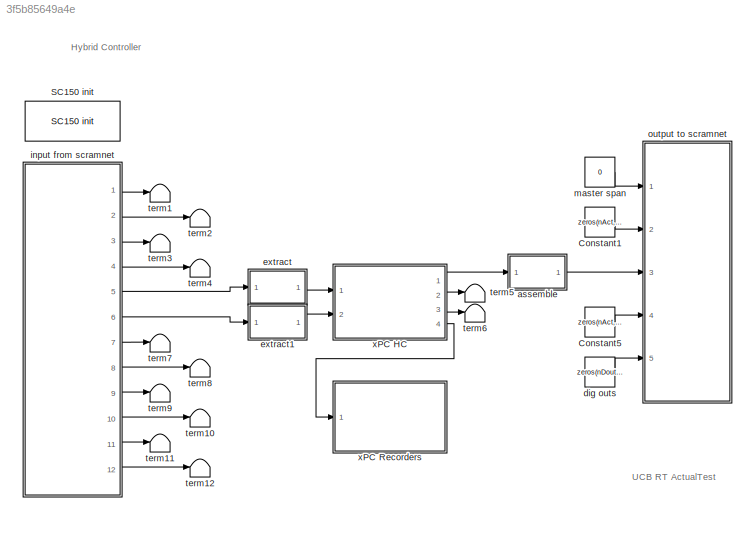
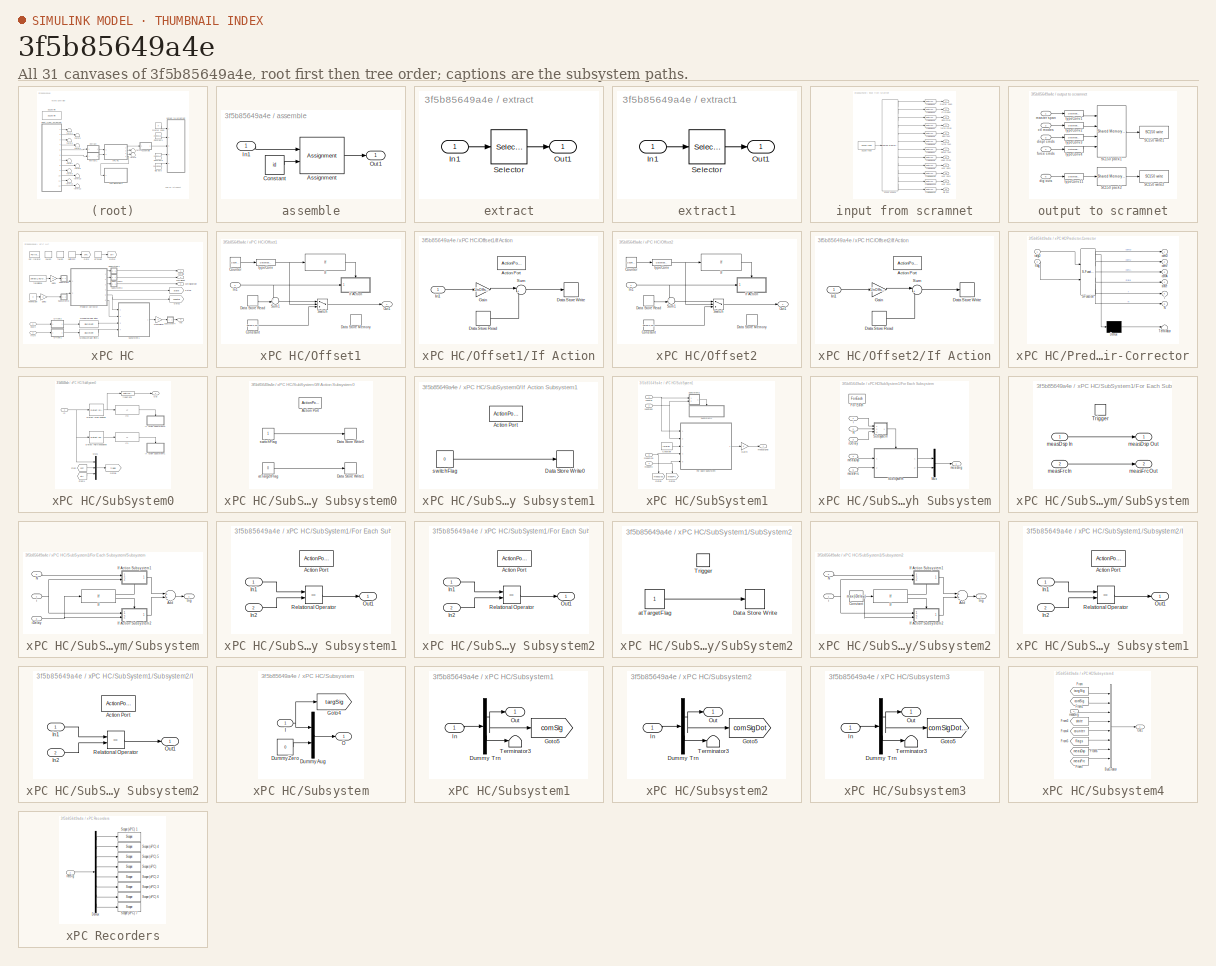
[diagram: thumbnail index - all 31 canvases of the model, root first then tree order]
MODEL slx_3f5b85649a4e
KIND model
CONFIG PreLoadFcn = initializeSimulation\ninitializeSCRAMNet
BLOCK [Constant] Constant1
  Value = zeros(nAct,1)
BLOCK [Constant] Constant5
  Value = zeros(nAct,1)
BLOCK [Reference] SC150 init  REF=xpcsystranlib/Shared
Memory/SC150 init 
  Ports = []
  SourceBlock = xpcsystranlib/Shared\nMemory/SC150 init
  SourceType = SC150 Init
  node = node
  pci = -1
BLOCK [SubSystem] assemble
  Ports = [1, 1]
  RequestExecContextInheritance = off
BLOCK [Assignment] assemble/Assignment
  IndexOptions = Index vector (port)
  OutputInitialize = Specify size for each dimension in table
  OutputSizes = size
  Ports = [2, 1]
BLOCK [Constant] assemble/Constant
  Value = id
BLOCK [Inport] assemble/In1
  IconDisplay = Port number
BLOCK [Outport] assemble/Out1
  IconDisplay = Port number
BLOCK [Constant] dig outs
  OutDataTypeStr = uint32
  Value = zeros(nDout, 1)
BLOCK [SubSystem] extract
  Ports = [1, 1]
  RequestExecContextInheritance = off
BLOCK [Inport] extract/In1
  IconDisplay = Port number
BLOCK [Outport] extract/Out1
  IconDisplay = Port number
BLOCK [Selector] extract/Selector
  Indices = id
  InputPortWidth = size
  Ports = [1, 1]
BLOCK [SubSystem] extract1
  Ports = [1, 1]
  RequestExecContextInheritance = off
BLOCK [Inport] extract1/In1
  IconDisplay = Port number
BLOCK [Outport] extract1/Out1
  IconDisplay = Port number
BLOCK [Selector] extract1/Selector
  Indices = id
  InputPortWidth = size
  Ports = [1, 1]
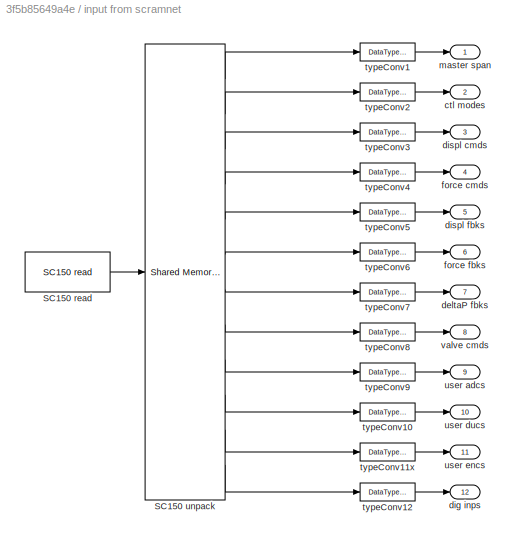
BLOCK [SubSystem] input from scramnet
  Ports = [0, 12]
  RequestExecContextInheritance = off
BLOCK [Reference] input from scramnet/SC150 read  REF=xpcsystranlib/Shared
Memory/SC150 read 
  Ports = [0, 1]
  SourceBlock = xpcsystranlib/Shared\nMemory/SC150 read
  SourceType = SC150 Read
  errorport = off
  partition = node.Partitions(12:23)
  pci = -1
  ts = samplePeriod
BLOCK [Reference] input from scramnet/SC150 unpack  REF=slrtlib/Shared
Memory/Shared Memory Unpack 
  Ports = [1, 12]
  SourceBlock = slrtlib/Shared\nMemory/Shared Memory Unpack
  SourceType = Shared Memory Partition Unpacking
  partition = node.Partitions(12:23)
BLOCK [Outport] input from scramnet/ctl modes
  IconDisplay = Port number
  Port = 2
BLOCK [Outport] input from scramnet/deltaP fbks
  IconDisplay = Port number
  Port = 7
BLOCK [Outport] input from scramnet/dig inps
  IconDisplay = Port number
  Port = 12
BLOCK [Outport] input from scramnet/displ cmds
  IconDisplay = Port number
  Port = 3
BLOCK [Outport] input from scramnet/displ fbks
  IconDisplay = Port number
  Port = 5
BLOCK [Outport] input from scramnet/force cmds
  IconDisplay = Port number
  Port = 4
BLOCK [Outport] input from scramnet/force fbks
  IconDisplay = Port number
  Port = 6
BLOCK [Outport] input from scramnet/master span
  IconDisplay = Port number
BLOCK [DataTypeConversion] input from scramnet/typeConv1
  OutDataTypeStr = double
BLOCK [DataTypeConversion] input from scramnet/typeConv10
  OutDataTypeStr = double
BLOCK [DataTypeConversion] input from scramnet/typeConv11x
  OutDataTypeStr = double
BLOCK [DataTypeConversion] input from scramnet/typeConv12
  OutDataTypeStr = uint32
BLOCK [DataTypeConversion] input from scramnet/typeConv2
  OutDataTypeStr = uint32
BLOCK [DataTypeConversion] input from scramnet/typeConv3
  OutDataTypeStr = double
BLOCK [DataTypeConversion] input from scramnet/typeConv4
  OutDataTypeStr = double
BLOCK [DataTypeConversion] input from scramnet/typeConv5
  OutDataTypeStr = double
BLOCK [DataTypeConversion] input from scramnet/typeConv6
  OutDataTypeStr = double
BLOCK [DataTypeConversion] input from scramnet/typeConv7
  OutDataTypeStr = double
BLOCK [DataTypeConversion] input from scramnet/typeConv8
  OutDataTypeStr = double
BLOCK [DataTypeConversion] input from scramnet/typeConv9
  OutDataTypeStr = double
BLOCK [Outport] input from scramnet/user adcs
  IconDisplay = Port number
  Port = 9
BLOCK [Outport] input from scramnet/user ducs
  IconDisplay = Port number
  Port = 10
BLOCK [Outport] input from scramnet/user encs
  IconDisplay = Port number
  Port = 11
BLOCK [Outport] input from scramnet/valve cmds
  IconDisplay = Port number
  Port = 8
BLOCK [Constant] master span
  Value = 0
BLOCK [SubSystem] output to scramnet
  Ports = [5]
  RequestExecContextInheritance = off
BLOCK [Reference] output to scramnet/SC150 pack1  REF=slrtlib/Shared
Memory/Shared Memory Pack 
  Ports = [4, 1]
  SourceBlock = slrtlib/Shared\nMemory/Shared Memory Pack
  SourceType = Shared-memory Pack
  partition = node.Partitions(1:4)
BLOCK [Reference] output to scramnet/SC150 pack2  REF=slrtlib/Shared
Memory/Shared Memory Pack 
  Ports = [1, 1]
  SourceBlock = slrtlib/Shared\nMemory/Shared Memory Pack
  SourceType = Shared-memory Pack
  partition = node.Partitions(11)
BLOCK [Reference] output to scramnet/SC150 write1  REF=xpcsystranlib/Shared
Memory/SC150 write 
  Ports = [1]
  SourceBlock = xpcsystranlib/Shared\nMemory/SC150 write
  SourceType = SC150 Write
  errorport = off
  partition = node.Partitions(1:4)
  pci = -1
  ts = samplePeriod
BLOCK [Reference] output to scramnet/SC150 write2  REF=xpcsystranlib/Shared
Memory/SC150 write 
  Ports = [1]
  SourceBlock = xpcsystranlib/Shared\nMemory/SC150 write
  SourceType = SC150 Write
  errorport = off
  partition = node.Partitions(11)
  pci = -1
  ts = samplePeriod
BLOCK [Inport] output to scramnet/ctl modes
  IconDisplay = Port number
  Port = 2
BLOCK [Inport] output to scramnet/dig outs
  IconDisplay = Port number
  Port = 5
BLOCK [Inport] output to scramnet/displ cmds
  IconDisplay = Port number
  Port = 3
BLOCK [Inport] output to scramnet/force cmds
  IconDisplay = Port number
  Port = 4
BLOCK [Inport] output to scramnet/master span
  IconDisplay = Port number
BLOCK [DataTypeConversion] output to scramnet/typeConv1
  OutDataTypeStr = single
BLOCK [DataTypeConversion] output to scramnet/typeConv11
  OutDataTypeStr = uint32
BLOCK [DataTypeConversion] output to scramnet/typeConv2
  OutDataTypeStr = uint32
BLOCK [DataTypeConversion] output to scramnet/typeConv3
  OutDataTypeStr = single
BLOCK [DataTypeConversion] output to scramnet/typeConv4
  OutDataTypeStr = single
BLOCK [Terminator] term1
BLOCK [Terminator] term10
BLOCK [Terminator] term11
BLOCK [Terminator] term12
BLOCK [Terminator] term2
BLOCK [Terminator] term3
BLOCK [Terminator] term4
BLOCK [Terminator] term5
BLOCK [Terminator] term6
BLOCK [Terminator] term7
BLOCK [Terminator] term8
BLOCK [Terminator] term9
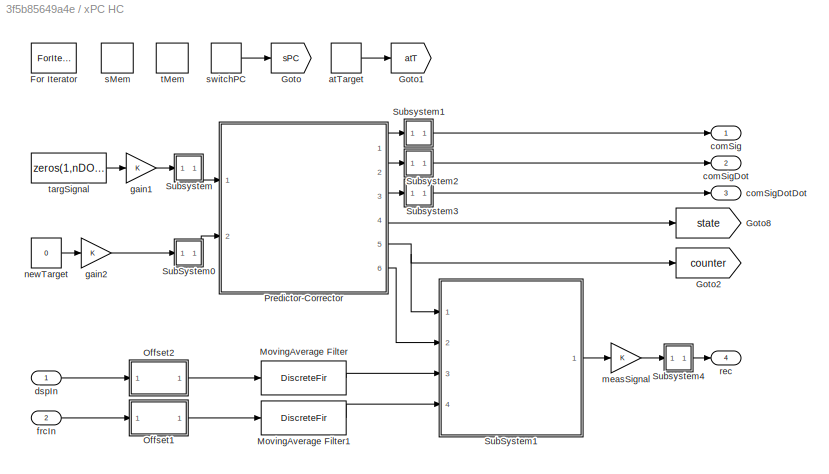
BLOCK [SubSystem] xPC HC
  Ports = [2, 4]
  RequestExecContextInheritance = off
BLOCK [ForIterator] xPC HC/For Iterator
  IterationLimit = upFact
  Ports = []
  ShowIterationPort = off
BLOCK [Goto] xPC HC/Goto
  GotoTag = sPC
  TagVisibility = global
BLOCK [Goto] xPC HC/Goto1
  GotoTag = atT
  TagVisibility = global
BLOCK [Goto] xPC HC/Goto2
  GotoTag = counter
  TagVisibility = global
BLOCK [Goto] xPC HC/Goto8
  GotoTag = state
  TagVisibility = global
BLOCK [DiscreteFir] xPC HC/MovingAverage Filter
  Coefficients = 1/numSample*ones(1,numSample)
  Ports = [1, 1]
BLOCK [DiscreteFir] xPC HC/MovingAverage Filter1
  Coefficients = 1/numSample*ones(1,numSample)
  Ports = [1, 1]
BLOCK [SubSystem] xPC HC/Offset1
  Ports = [1, 1]
  RequestExecContextInheritance = off
BLOCK [Constant] xPC HC/Offset1/Constant
  Value = zeros(1,nS)
BLOCK [Reference] xPC HC/Offset1/Counter  REF=simulink/Sources/Counter
Free-Running
  NumBits = 32
  Ports = [0, 1]
  SourceBlock = simulink/Sources/Counter\nFree-Running
  SourceType = Counter Free-Running
  tsamp = -1
BLOCK [DataStoreMemory] xPC HC/Offset1/Data Store Memory
  DataStoreName = x0
  InitialValue = zeros(1,nS)
  OutDataTypeStr = double
  SignalType = real
BLOCK [DataStoreRead] xPC HC/Offset1/Data Store Read
  DataStoreName = x0
  Ports = [0, 1]
BLOCK [If] xPC HC/Offset1/If
  IfExpression = u1 < nOffset
  Ports = [1, 1]
  ShowElse = off
BLOCK [SubSystem] xPC HC/Offset1/If Action
  Ports = [1, 0, 0, 0, 0, 0, 0, 1]
  RequestExecContextInheritance = off
  TreatAsAtomicUnit = on
BLOCK [ActionPort] xPC HC/Offset1/If Action/Action Port
  ActionType = then
  PropagateVarSize = During execution
BLOCK [DataStoreRead] xPC HC/Offset1/If Action/Data Store Read
  DataStoreName = x0
  Ports = [0, 1]
BLOCK [DataStoreWrite] xPC HC/Offset1/If Action/Data Store Write
  DataStoreName = x0
  Ports = [1]
BLOCK [Gain] xPC HC/Offset1/If Action/Gain
  Gain = 1/nOffset
BLOCK [Inport] xPC HC/Offset1/If Action/In1
  IconDisplay = Port number
BLOCK [Sum] xPC HC/Offset1/If Action/Sum
  IconShape = round
  Inputs = |++
  Ports = [2, 1]
BLOCK [Inport] xPC HC/Offset1/In1
  IconDisplay = Port number
BLOCK [Outport] xPC HC/Offset1/Out1
  IconDisplay = Port number
BLOCK [Sum] xPC HC/Offset1/Sum1
  IconShape = round
  Inputs = +-|
  Ports = [2, 1]
BLOCK [Switch] xPC HC/Offset1/Switch
  Threshold = nOffset
BLOCK [DataTypeConversion] xPC HC/Offset1/typeConv
  OutDataTypeStr = double
  RndMeth = Round
BLOCK [SubSystem] xPC HC/Offset2
  Ports = [1, 1]
  RequestExecContextInheritance = off
BLOCK [Constant] xPC HC/Offset2/Constant
  Value = zeros(1,nS)
BLOCK [Reference] xPC HC/Offset2/Counter  REF=simulink/Sources/Counter
Free-Running
  NumBits = 32
  Ports = [0, 1]
  SourceBlock = simulink/Sources/Counter\nFree-Running
  SourceType = Counter Free-Running
  tsamp = -1
BLOCK [DataStoreMemory] xPC HC/Offset2/Data Store Memory
  DataStoreName = x0
  InitialValue = zeros(1,nS)
  OutDataTypeStr = double
  SignalType = real
BLOCK [DataStoreRead] xPC HC/Offset2/Data Store Read
  DataStoreName = x0
  Ports = [0, 1]
BLOCK [If] xPC HC/Offset2/If
  IfExpression = u1 < nOffset
  Ports = [1, 1]
  ShowElse = off
BLOCK [SubSystem] xPC HC/Offset2/If Action
  Ports = [1, 0, 0, 0, 0, 0, 0, 1]
  RequestExecContextInheritance = off
  TreatAsAtomicUnit = on
BLOCK [ActionPort] xPC HC/Offset2/If Action/Action Port
  ActionType = then
  PropagateVarSize = During execution
BLOCK [DataStoreRead] xPC HC/Offset2/If Action/Data Store Read
  DataStoreName = x0
  Ports = [0, 1]
BLOCK [DataStoreWrite] xPC HC/Offset2/If Action/Data Store Write
  DataStoreName = x0
  Ports = [1]
BLOCK [Gain] xPC HC/Offset2/If Action/Gain
  Gain = 1/nOffset
BLOCK [Inport] xPC HC/Offset2/If Action/In1
  IconDisplay = Port number
BLOCK [Sum] xPC HC/Offset2/If Action/Sum
  IconShape = round
  Inputs = |++
  Ports = [2, 1]
BLOCK [Inport] xPC HC/Offset2/In1
  IconDisplay = Port number
BLOCK [Outport] xPC HC/Offset2/Out1
  IconDisplay = Port number
BLOCK [Sum] xPC HC/Offset2/Sum1
  IconShape = round
  Inputs = +-|
  Ports = [2, 1]
BLOCK [Switch] xPC HC/Offset2/Switch
  Threshold = nOffset
BLOCK [DataTypeConversion] xPC HC/Offset2/typeConv
  OutDataTypeStr = double
  RndMeth = Round
BLOCK [SubSystem] xPC HC/Predictor-Corrector
  ErrorFcn = Stateflow.Translate.translate
  PermitHierarchicalResolution = ExplicitOnly
  Ports = [2, 6]
  RequestExecContextInheritance = off
  SFBlockType = Chart
  TreatAsAtomicUnit = on
BLOCK [Demux] xPC HC/Predictor-Corrector/ Demux 
  Outputs = 1
  Ports = [1, 1]
BLOCK [S-Function] xPC HC/Predictor-Corrector/ SFunction 
  EnableBusSupport = on
  FunctionName = sf_sfun
  Parameters = dofID,dtCon,dtInt,dtSim,nDOF,vDOF,vDOFmax
  PortCounts = [2 7]
  Ports = [2, 7]
  Tag = Stateflow S-Function HybridControllerD2D2_Vconst 2
BLOCK [Terminator] xPC HC/Predictor-Corrector/ Terminator 
BLOCK [Outport] xPC HC/Predictor-Corrector/N
  IconDisplay = Port number
  Port = 6
BLOCK [Outport] xPC HC/Predictor-Corrector/comA
  IconDisplay = Port number
  Port = 3
BLOCK [Outport] xPC HC/Predictor-Corrector/comD
  IconDisplay = Port number
BLOCK [Outport] xPC HC/Predictor-Corrector/comV
  IconDisplay = Port number
  Port = 2
BLOCK [Inport] xPC HC/Predictor-Corrector/flag
  IconDisplay = Port number
  Port = 2
BLOCK [Outport] xPC HC/Predictor-Corrector/i
  IconDisplay = Port number
  Port = 5
BLOCK [Outport] xPC HC/Predictor-Corrector/state
  IconDisplay = Port number
  Port = 4
BLOCK [Inport] xPC HC/Predictor-Corrector/targD
  IconDisplay = Port number
BLOCK [SubSystem] xPC HC/SubSystem0
  Ports = [1, 1]
  RequestExecContextInheritance = off
BLOCK [Reference] xPC HC/SubSystem0/Detect Fall Nonpositive  REF=simulink/Logic and Bit
Operations/Detect Fall
Nonpositive
  InputProcessing = Elements as channels (sample based)
  OutDataTypeStr = uint8
  Ports = [1, 1]
  SourceBlock = simulink/Logic and Bit\nOperations/Detect Fall\nNonpositive
  SourceType = Detect Fall Nonpositive
  vinit = 0
BLOCK [Reference] xPC HC/SubSystem0/Detect Rise Positive  REF=simulink/Logic and Bit
Operations/Detect Rise
Positive
  InputProcessing = Elements as channels (sample based)
  OutDataTypeStr = uint8
  Ports = [1, 1]
  SourceBlock = simulink/Logic and Bit\nOperations/Detect Rise\nPositive
  SourceType = Detect Rise Positive
  vinit = 0
BLOCK [From] xPC HC/SubSystem0/From
  GotoTag = sPC
  IconDisplay = Signal name
  TagVisibility = global
BLOCK [From] xPC HC/SubSystem0/From1
  GotoTag = atT
  IconDisplay = Signal name
  TagVisibility = global
BLOCK [Goto] xPC HC/SubSystem0/Goto8
  GotoTag = flags
  TagVisibility = global
BLOCK [SubSystem] xPC HC/SubSystem0/If Action Subsystem0
  Ports = [0, 0, 0, 0, 0, 0, 0, 1]
  RequestExecContextInheritance = off
  TreatAsAtomicUnit = on
BLOCK [ActionPort] xPC HC/SubSystem0/If Action Subsystem0/Action Port
  ActionType = then
  PropagateVarSize = During execution
BLOCK [DataStoreWrite] xPC HC/SubSystem0/If Action Subsystem0/Data Store Write0
  DataStoreName = sFlag
  Ports = [1]
BLOCK [DataStoreWrite] xPC HC/SubSystem0/If Action Subsystem0/Data Store Write1
  DataStoreName = tFlag
  Ports = [1]
BLOCK [Constant] xPC HC/SubSystem0/If Action Subsystem0/atTargetFlag
  OutDataTypeStr = int32
  SampleTime = -1
  Value = 0
BLOCK [Constant] xPC HC/SubSystem0/If Action Subsystem0/switchFlag
  OutDataTypeStr = int32
  SampleTime = -1
BLOCK [SubSystem] xPC HC/SubSystem0/If Action Subsystem1
  Ports = [0, 0, 0, 0, 0, 0, 0, 1]
  RequestExecContextInheritance = off
  TreatAsAtomicUnit = on
BLOCK [ActionPort] xPC HC/SubSystem0/If Action Subsystem1/Action Port
  ActionType = then
  PropagateVarSize = During execution
BLOCK [DataStoreWrite] xPC HC/SubSystem0/If Action Subsystem1/Data Store Write0
  DataStoreName = sFlag
  Ports = [1]
BLOCK [Constant] xPC HC/SubSystem0/If Action Subsystem1/switchFlag
  OutDataTypeStr = int32
  SampleTime = -1
  Value = 0
BLOCK [If] xPC HC/SubSystem0/If0
  IfExpression = u1 == 1
  Ports = [1, 1]
  ShowElse = off
BLOCK [If] xPC HC/SubSystem0/If1
  IfExpression = u1 == 1
  Ports = [1, 1]
  ShowElse = off
BLOCK [Inport] xPC HC/SubSystem0/In
  IconDisplay = Port number
BLOCK [Mux] xPC HC/SubSystem0/Mux1
  DisplayOption = bar
  Inputs = 3
  Ports = [3, 1]
BLOCK [Outport] xPC HC/SubSystem0/Out
  IconDisplay = Port number
BLOCK [DataTypeConversion] xPC HC/SubSystem0/typeConv
  OutDataTypeStr = int32
BLOCK [SubSystem] xPC HC/SubSystem1
  Ports = [4, 1]
  RequestExecContextInheritance = off
BLOCK [Constant] xPC HC/SubSystem1/Constant
  Value = iDelay
BLOCK [SubSystem] xPC HC/SubSystem1/For Each Subsystem
  Ports = [5, 1]
  RequestExecContextInheritance = off
  TreatAsAtomicUnit = on
BLOCK [ForEach] xPC HC/SubSystem1/For Each Subsystem/For Each
  DisableCoverage = on
  IndexMode = One-based
  Ports = []
BLOCK [Mux] xPC HC/SubSystem1/For Each Subsystem/Mux
  DisplayOption = bar
  Inputs = 2
  Ports = [2, 1]
BLOCK [Inport] xPC HC/SubSystem1/For Each Subsystem/N
  IconDisplay = Port number
  Partition = off
  Port = 2
BLOCK [SubSystem] xPC HC/SubSystem1/For Each Subsystem/SubSystem
  Ports = [2, 2, 0, 1]
  RequestExecContextInheritance = off
  TreatAsAtomicUnit = on
BLOCK [TriggerPort] xPC HC/SubSystem1/For Each Subsystem/SubSystem/Trigger
  Ports = []
  StatesWhenEnabling = held
BLOCK [Inport] xPC HC/SubSystem1/For Each Subsystem/SubSystem/measDsp In
  IconDisplay = Port number
BLOCK [Outport] xPC HC/SubSystem1/For Each Subsystem/SubSystem/measDsp Out
  IconDisplay = Port number
  InitialOutput = [0]
BLOCK [Inport] xPC HC/SubSystem1/For Each Subsystem/SubSystem/measFrc In
  IconDisplay = Port number
  Port = 2
BLOCK [Outport] xPC HC/SubSystem1/For Each Subsystem/SubSystem/measFrc Out
  IconDisplay = Port number
  InitialOutput = [0]
  Port = 2
BLOCK [SubSystem] xPC HC/SubSystem1/For Each Subsystem/Subsystem
  Ports = [3, 1]
  RequestExecContextInheritance = off
BLOCK [Sum] xPC HC/SubSystem1/For Each Subsystem/Subsystem/Add
  InputSameDT = off
  OutDataTypeStr = Inherit: Inherit via internal rule
  Ports = [2, 1]
  SaturateOnIntegerOverflow = off
BLOCK [If] xPC HC/SubSystem1/For Each Subsystem/Subsystem/If
  IfExpression = u1 == 0
  Ports = [1, 2]
BLOCK [SubSystem] xPC HC/SubSystem1/For Each Subsystem/Subsystem/If Action Subsystem1
  Ports = [2, 1, 0, 0, 0, 0, 0, 1]
  RequestExecContextInheritance = off
  TreatAsAtomicUnit = on
BLOCK [ActionPort] xPC HC/SubSystem1/For Each Subsystem/Subsystem/If Action Subsystem1/Action Port
  ActionType = then
BLOCK [Inport] xPC HC/SubSystem1/For Each Subsystem/Subsystem/If Action Subsystem1/In1
  IconDisplay = Port number
BLOCK [Inport] xPC HC/SubSystem1/For Each Subsystem/Subsystem/If Action Subsystem1/In2
  IconDisplay = Port number
  Port = 2
BLOCK [Outport] xPC HC/SubSystem1/For Each Subsystem/Subsystem/If Action Subsystem1/Out1
  IconDisplay = Port number
  InitialOutput = 0
BLOCK [RelationalOperator] xPC HC/SubSystem1/For Each Subsystem/Subsystem/If Action Subsystem1/Relational Operator
  InputSameDT = off
  Operator = ==
  OutDataTypeStr = boolean
  Ports = [2, 1]
BLOCK [SubSystem] xPC HC/SubSystem1/For Each Subsystem/Subsystem/If Action Subsystem2
  Ports = [2, 1, 0, 0, 0, 0, 0, 1]
  RequestExecContextInheritance = off
  TreatAsAtomicUnit = on
BLOCK [ActionPort] xPC HC/SubSystem1/For Each Subsystem/Subsystem/If Action Subsystem2/Action Port
  ActionType = else
BLOCK [Inport] xPC HC/SubSystem1/For Each Subsystem/Subsystem/If Action Subsystem2/In1
  IconDisplay = Port number
BLOCK [Inport] xPC HC/SubSystem1/For Each Subsystem/Subsystem/If Action Subsystem2/In2
  IconDisplay = Port number
  Port = 2
BLOCK [Outport] xPC HC/SubSystem1/For Each Subsystem/Subsystem/If Action Subsystem2/Out1
  IconDisplay = Port number
  InitialOutput = 0
BLOCK [RelationalOperator] xPC HC/SubSystem1/For Each Subsystem/Subsystem/If Action Subsystem2/Relational Operator
  InputSameDT = off
  Operator = ==
  OutDataTypeStr = boolean
  Ports = [2, 1]
BLOCK [Inport] xPC HC/SubSystem1/For Each Subsystem/Subsystem/N
  IconDisplay = Port number
  Port = 2
BLOCK [Inport] xPC HC/SubSystem1/For Each Subsystem/Subsystem/i
  IconDisplay = Port number
BLOCK [Inport] xPC HC/SubSystem1/For Each Subsystem/Subsystem/iDelay
  IconDisplay = Port number
  Port = 3
BLOCK [Outport] xPC HC/SubSystem1/For Each Subsystem/Subsystem/trig
  IconDisplay = Port number
BLOCK [Inport] xPC HC/SubSystem1/For Each Subsystem/i
  IconDisplay = Port number
  Partition = off
BLOCK [Inport] xPC HC/SubSystem1/For Each Subsystem/iDelay
  IconDisplay = Port number
  Partition = on
  PartitionDimension = 1
  PartitionWidth = 1
  Port = 3
BLOCK [Inport] xPC HC/SubSystem1/For Each Subsystem/measDsp
  IconDisplay = Port number
  Partition = on
  PartitionDimension = 1
  PartitionWidth = 1
  Port = 4
BLOCK [Inport] xPC HC/SubSystem1/For Each Subsystem/measFrc
  IconDisplay = Port number
  Partition = on
  PartitionDimension = 1
  PartitionWidth = 1
  Port = 5
BLOCK [Outport] xPC HC/SubSystem1/For Each Subsystem/measSig
  ConcatenationDimension = 1
  IconDisplay = Port number
BLOCK [Gain] xPC HC/SubSystem1/Gain4
BLOCK [Goto] xPC HC/SubSystem1/Goto4
  GotoTag = measFrc
  TagVisibility = global
BLOCK [Goto] xPC HC/SubSystem1/Goto5
  GotoTag = measDsp
  TagVisibility = global
BLOCK [SubSystem] xPC HC/SubSystem1/SubSystem2
  Ports = [0, 0, 0, 1]
  RequestExecContextInheritance = off
  TreatAsAtomicUnit = on
BLOCK [DataStoreWrite] xPC HC/SubSystem1/SubSystem2/Data Store Write
  DataStoreName = tFlag
  Ports = [1]
BLOCK [TriggerPort] xPC HC/SubSystem1/SubSystem2/Trigger
  Ports = []
  StatesWhenEnabling = held
BLOCK [Constant] xPC HC/SubSystem1/SubSystem2/atTargetFlag
  OutDataTypeStr = int32
  SampleTime = -1
BLOCK [SubSystem] xPC HC/SubSystem1/Subsystem2
  Ports = [2, 1]
  RequestExecContextInheritance = off
BLOCK [Sum] xPC HC/SubSystem1/Subsystem2/Add
  InputSameDT = off
  OutDataTypeStr = Inherit: Inherit via internal rule
  Ports = [2, 1]
  SaturateOnIntegerOverflow = off
BLOCK [Constant] xPC HC/SubSystem1/Subsystem2/Constant
  Value = max(iDelay)
BLOCK [If] xPC HC/SubSystem1/Subsystem2/If
  IfExpression = u1 == 0
  Ports = [1, 2]
BLOCK [SubSystem] xPC HC/SubSystem1/Subsystem2/If Action Subsystem1
  Ports = [2, 1, 0, 0, 0, 0, 0, 1]
  RequestExecContextInheritance = off
  TreatAsAtomicUnit = on
BLOCK [ActionPort] xPC HC/SubSystem1/Subsystem2/If Action Subsystem1/Action Port
  ActionType = then
BLOCK [Inport] xPC HC/SubSystem1/Subsystem2/If Action Subsystem1/In1
  IconDisplay = Port number
BLOCK [Inport] xPC HC/SubSystem1/Subsystem2/If Action Subsystem1/In2
  IconDisplay = Port number
  Port = 2
BLOCK [Outport] xPC HC/SubSystem1/Subsystem2/If Action Subsystem1/Out1
  IconDisplay = Port number
  InitialOutput = 0
BLOCK [RelationalOperator] xPC HC/SubSystem1/Subsystem2/If Action Subsystem1/Relational Operator
  InputSameDT = off
  Operator = ==
  OutDataTypeStr = boolean
  Ports = [2, 1]
BLOCK [SubSystem] xPC HC/SubSystem1/Subsystem2/If Action Subsystem2
  Ports = [2, 1, 0, 0, 0, 0, 0, 1]
  RequestExecContextInheritance = off
  TreatAsAtomicUnit = on
BLOCK [ActionPort] xPC HC/SubSystem1/Subsystem2/If Action Subsystem2/Action Port
  ActionType = else
BLOCK [Inport] xPC HC/SubSystem1/Subsystem2/If Action Subsystem2/In1
  IconDisplay = Port number
BLOCK [Inport] xPC HC/SubSystem1/Subsystem2/If Action Subsystem2/In2
  IconDisplay = Port number
  Port = 2
BLOCK [Outport] xPC HC/SubSystem1/Subsystem2/If Action Subsystem2/Out1
  IconDisplay = Port number
  InitialOutput = 0
BLOCK [RelationalOperator] xPC HC/SubSystem1/Subsystem2/If Action Subsystem2/Relational Operator
  InputSameDT = off
  Operator = ==
  OutDataTypeStr = boolean
  Ports = [2, 1]
BLOCK [Inport] xPC HC/SubSystem1/Subsystem2/N
  IconDisplay = Port number
  Port = 2
BLOCK [Inport] xPC HC/SubSystem1/Subsystem2/i
  IconDisplay = Port number
BLOCK [Outport] xPC HC/SubSystem1/Subsystem2/trig
  IconDisplay = Port number
BLOCK [Inport] xPC HC/SubSystem1/counter
  IconDisplay = Port number
BLOCK [Inport] xPC HC/SubSystem1/measDsp
  IconDisplay = Port number
  Port = 3
BLOCK [Inport] xPC HC/SubSystem1/measFrc
  IconDisplay = Port number
  Port = 4
BLOCK [Outport] xPC HC/SubSystem1/measSignal
  IconDisplay = Port number
BLOCK [Inport] xPC HC/SubSystem1/subSteps
  IconDisplay = Port number
  Port = 2
BLOCK [SubSystem] xPC HC/Subsystem
  Ports = [1, 1]
  RequestExecContextInheritance = off
BLOCK [Mux] xPC HC/Subsystem/Dummy Aug
  DisplayOption = bar
  Inputs = [nDOF 1]
  Ports = [2, 1]
BLOCK [Constant] xPC HC/Subsystem/Dummy Zero
  OutDataTypeStr = double
  SampleTime = -1
  Value = 0
BLOCK [Goto] xPC HC/Subsystem/Goto4
  GotoTag = targSig
  TagVisibility = global
BLOCK [Inport] xPC HC/Subsystem/I
  IconDisplay = Port number
  PortDimensions = nDOF
BLOCK [Outport] xPC HC/Subsystem/O
  IconDisplay = Port number
  PortDimensions = nDOF+1
BLOCK [SubSystem] xPC HC/Subsystem1
  Ports = [1, 1]
  RequestExecContextInheritance = off
BLOCK [Demux] xPC HC/Subsystem1/Dummy Trn
  DisplayOption = bar
  Outputs = [nDOF 1]
  Ports = [1, 2]
BLOCK [Goto] xPC HC/Subsystem1/Goto5
  GotoTag = comSig
  TagVisibility = global
BLOCK [Inport] xPC HC/Subsystem1/In
  IconDisplay = Port number
  PortDimensions = nDOF+1
BLOCK [Outport] xPC HC/Subsystem1/Out
  IconDisplay = Port number
  PortDimensions = nDOF
BLOCK [Terminator] xPC HC/Subsystem1/Terminator3
BLOCK [SubSystem] xPC HC/Subsystem2
  Ports = [1, 1]
  RequestExecContextInheritance = off
BLOCK [Demux] xPC HC/Subsystem2/Dummy Trn
  DisplayOption = bar
  Outputs = [nDOF 1]
  Ports = [1, 2]
BLOCK [Goto] xPC HC/Subsystem2/Goto5
  GotoTag = comSigDot
  TagVisibility = global
BLOCK [Inport] xPC HC/Subsystem2/In
  IconDisplay = Port number
  PortDimensions = nDOF+1
BLOCK [Outport] xPC HC/Subsystem2/Out
  IconDisplay = Port number
  PortDimensions = nDOF
BLOCK [Terminator] xPC HC/Subsystem2/Terminator3
BLOCK [SubSystem] xPC HC/Subsystem3
  Ports = [1, 1]
  RequestExecContextInheritance = off
BLOCK [Demux] xPC HC/Subsystem3/Dummy Trn
  DisplayOption = bar
  Outputs = [nDOF 1]
  Ports = [1, 2]
BLOCK [Goto] xPC HC/Subsystem3/Goto5
  GotoTag = comSigDotDot
  TagVisibility = global
BLOCK [Inport] xPC HC/Subsystem3/In
  IconDisplay = Port number
  PortDimensions = nDOF+1
BLOCK [Outport] xPC HC/Subsystem3/Out
  IconDisplay = Port number
  PortDimensions = nDOF
BLOCK [Terminator] xPC HC/Subsystem3/Terminator3
BLOCK [SubSystem] xPC HC/Subsystem4
  Ports = [1, 1]
  RequestExecContextInheritance = off
BLOCK [BusCreator] xPC HC/Subsystem4/BusCreator
  Inputs = 8
  Ports = [8, 1]
BLOCK [From] xPC HC/Subsystem4/From
  GotoTag = targSig
  TagVisibility = global
BLOCK [From] xPC HC/Subsystem4/From1
  GotoTag = comSig
  TagVisibility = global
BLOCK [From] xPC HC/Subsystem4/From3
  GotoTag = state
  TagVisibility = global
BLOCK [From] xPC HC/Subsystem4/From4
  GotoTag = counter
  TagVisibility = global
BLOCK [From] xPC HC/Subsystem4/From5
  GotoTag = flags
  TagVisibility = global
BLOCK [From] xPC HC/Subsystem4/From6
  GotoTag = measDsp
  TagVisibility = global
BLOCK [From] xPC HC/Subsystem4/From7
  GotoTag = measFrc
  TagVisibility = global
BLOCK [Outport] xPC HC/Subsystem4/Out1
  IconDisplay = Port number
BLOCK [Inport] xPC HC/Subsystem4/measSig
  IconDisplay = Port number
BLOCK [DataStoreRead] xPC HC/atTarget
  DataStoreName = tFlag
  Ports = [0, 1]
BLOCK [Outport] xPC HC/comSig
  IconDisplay = Port number
BLOCK [Outport] xPC HC/comSigDot
  IconDisplay = Port number
  Port = 2
BLOCK [Outport] xPC HC/comSigDotDot
  IconDisplay = Port number
  Port = 3
BLOCK [Inport] xPC HC/dspIn
  IconDisplay = Port number
BLOCK [Inport] xPC HC/frcIn
  IconDisplay = Port number
  Port = 2
BLOCK [Gain] xPC HC/gain1
  OutDataTypeStr = double
  ParamDataTypeStr = Inherit: Inherit via internal rule
  SaturateOnIntegerOverflow = off
BLOCK [Gain] xPC HC/gain2
  OutDataTypeStr = int32
  ParamDataTypeStr = Inherit: Inherit via internal rule
  SaturateOnIntegerOverflow = off
BLOCK [Gain] xPC HC/measSignal
  OutDataTypeStr = double
  ParamDataTypeStr = Inherit: Inherit via internal rule
  SaturateOnIntegerOverflow = off
BLOCK [Constant] xPC HC/newTarget
  OutDataTypeStr = int32
  SampleTime = -1
  Value = 0
BLOCK [Outport] xPC HC/rec
  IconDisplay = Port number
  Port = 4
BLOCK [DataStoreMemory] xPC HC/sMem
  DataStoreName = sFlag
  OutDataTypeStr = int32
  SignalType = real
BLOCK [DataStoreRead] xPC HC/switchPC
  DataStoreName = sFlag
  Ports = [0, 1]
BLOCK [DataStoreMemory] xPC HC/tMem
  DataStoreName = tFlag
  OutDataTypeStr = int32
  SignalType = real
BLOCK [Constant] xPC HC/targSignal
  OutDataTypeStr = double
  SampleTime = -1
  Value = zeros(1,nDOF)
BLOCK [SubSystem] xPC Recorders
  Ports = [1]
  RequestExecContextInheritance = off
BLOCK [Demux] xPC Recorders/Demux
  DisplayOption = bar
  Outputs = [nDOF nDOF (2*nDOF) 1 1 3 nDOF nDOF]
  Ports = [1, 8]
BLOCK [Reference] xPC Recorders/Scope (xPC)   REF=slrtlib/Displays and
Logging/Scope 
  Ports = [1]
  SourceBlock = slrtlib/Displays and\nLogging/Scope
  SourceType = xpcscopeblock
  autorestart = on
  autostart = on
  dynamicfilemode = off
  filename = state.dat
  formatstr = '%15.6f'
  grid = on
  interleave = 1
  maxwritefilesize = 512*1024^2
  mode = Lazy
  noprepostsamples = 0
  nosamples = 4096
  scopeno = 4
  scopetype = File
  triggerlevel = 0.0
  triggermode = FreeRun
  triggersample = 0
  triggerscope = 1
  triggersignal = 1
  triggerslope = Either
  trigsignalfromport = off
  viewmode = Graphical redraw
  writesize = 512
  ylimits = [0,3]
BLOCK [Reference] xPC Recorders/Scope (xPC) 1  REF=slrtlib/Displays and
Logging/Scope 
  Ports = [1]
  SourceBlock = slrtlib/Displays and\nLogging/Scope
  SourceType = xpcscopeblock
  autorestart = on
  autostart = on
  dynamicfilemode = off
  filename = targSig.dat
  formatstr = '%15.6f'
  grid = on
  interleave = 1
  maxwritefilesize = 512*1024^2
  mode = Lazy
  noprepostsamples = 0
  nosamples = 4096
  scopeno = 1
  scopetype = File
  triggerlevel = 0.0
  triggermode = FreeRun
  triggersample = 0
  triggerscope = 1
  triggersignal = 1
  triggerslope = Either
  trigsignalfromport = off
  viewmode = Numerical
  writesize = 512
  ylimits = [-4,4]
BLOCK [Reference] xPC Recorders/Scope (xPC) 2  REF=slrtlib/Displays and
Logging/Scope 
  Ports = [1]
  SourceBlock = slrtlib/Displays and\nLogging/Scope
  SourceType = xpcscopeblock
  autorestart = on
  autostart = on
  dynamicfilemode = off
  filename = count.dat
  formatstr = '%15.6f'
  grid = on
  interleave = 1
  maxwritefilesize = 512*1024^2
  mode = Lazy
  noprepostsamples = 0
  nosamples = 4096
  scopeno = 5
  scopetype = File
  triggerlevel = 0.0
  triggermode = FreeRun
  triggersample = 0
  triggerscope = 1
  triggersignal = 1
  triggerslope = Either
  trigsignalfromport = off
  viewmode = Numerical
  writesize = 512
  ylimits = [0,3]
BLOCK [Reference] xPC Recorders/Scope (xPC) 3  REF=slrtlib/Displays and
Logging/Scope 
  Ports = [1]
  SourceBlock = slrtlib/Displays and\nLogging/Scope
  SourceType = xpcscopeblock
  autorestart = on
  autostart = on
  dynamicfilemode = off
  filename = flag.dat
  formatstr = '%15.6f'
  grid = on
  interleave = 1
  maxwritefilesize = 512*1024^2
  mode = Lazy
  noprepostsamples = 0
  nosamples = 4096
  scopeno = 6
  scopetype = File
  triggerlevel = 0.0
  triggermode = FreeRun
  triggersample = 0
  triggerscope = 1
  triggersignal = 1
  triggerslope = Either
  trigsignalfromport = off
  viewmode = Numerical
  writesize = 512
  ylimits = [0,3]
BLOCK [Reference] xPC Recorders/Scope (xPC) 4  REF=slrtlib/Displays and
Logging/Scope 
  Ports = [1]
  SourceBlock = slrtlib/Displays and\nLogging/Scope
  SourceType = xpcscopeblock
  autorestart = on
  autostart = on
  dynamicfilemode = off
  filename = commSig.dat
  formatstr = '%15.6f'
  grid = on
  interleave = 1
  maxwritefilesize = 512*1024^2
  mode = Lazy
  noprepostsamples = 0
  nosamples = 4096
  scopeno = 2
  scopetype = File
  triggerlevel = 0.0
  triggermode = FreeRun
  triggersample = 0
  triggerscope = 1
  triggersignal = 1
  triggerslope = Either
  trigsignalfromport = off
  viewmode = Numerical
  writesize = 512
  ylimits = [-4,4]
BLOCK [Reference] xPC Recorders/Scope (xPC) 5  REF=slrtlib/Displays and
Logging/Scope 
  Ports = [1]
  SourceBlock = slrtlib/Displays and\nLogging/Scope
  SourceType = xpcscopeblock
  autorestart = on
  autostart = on
  dynamicfilemode = off
  filename = measSig.dat
  formatstr = '%15.6f'
  grid = on
  interleave = 1
  maxwritefilesize = 512*1024^2
  mode = Lazy
  noprepostsamples = 0
  nosamples = 4096
  scopeno = 3
  scopetype = File
  triggerlevel = 0.0
  triggermode = FreeRun
  triggersample = 0
  triggerscope = 1
  triggersignal = 1
  triggerslope = Either
  trigsignalfromport = off
  viewmode = Numerical
  writesize = 512
  ylimits = [-4,4]
BLOCK [Reference] xPC Recorders/Scope (xPC) 6  REF=slrtlib/Displays and
Logging/Scope 
  Ports = [1]
  SourceBlock = slrtlib/Displays and\nLogging/Scope
  SourceType = xpcscopeblock
  autorestart = on
  autostart = on
  dynamicfilemode = off
  filename = measDsp.dat
  formatstr = '%15.6f'
  grid = on
  interleave = 1
  maxwritefilesize = 512*1024^2
  mode = Lazy
  noprepostsamples = 0
  nosamples = 4096
  scopeno = 7
  scopetype = File
  triggerlevel = 0.0
  triggermode = FreeRun
  triggersample = 0
  triggerscope = 1
  triggersignal = 1
  triggerslope = Either
  trigsignalfromport = off
  viewmode = Numerical
  writesize = 512
  ylimits = [0,3]
BLOCK [Reference] xPC Recorders/Scope (xPC) 7  REF=slrtlib/Displays and
Logging/Scope 
  Ports = [1]
  SourceBlock = slrtlib/Displays and\nLogging/Scope
  SourceType = xpcscopeblock
  autorestart = on
  autostart = on
  dynamicfilemode = off
  filename = measFrc.dat
  formatstr = '%15.6f'
  grid = on
  interleave = 1
  maxwritefilesize = 512*1024^2
  mode = Lazy
  noprepostsamples = 0
  nosamples = 4096
  scopeno = 8
  scopetype = File
  triggerlevel = 0.0
  triggermode = FreeRun
  triggersample = 0
  triggerscope = 1
  triggersignal = 1
  triggerslope = Either
  trigsignalfromport = off
  viewmode = Numerical
  writesize = 512
  ylimits = [0,3]
BLOCK [Inport] xPC Recorders/recSig
  IconDisplay = Port number
ANNOTATION (root): Hybrid Controller
ANNOTATION (root): UCB RT ActualTest
LINE Constant1:1 -> output to scramnet:2
LINE Constant5:1 -> output to scramnet:4
LINE assemble/Assignment:1 -> assemble/Out1:1
LINE assemble/Constant:1 -> assemble/Assignment:2
LINE assemble/In1:1 -> assemble/Assignment:1
LINE assemble:1 -> output to scramnet:3
LINE dig outs:1 -> output to scramnet:5
LINE extract/In1:1 -> extract/Selector:1
LINE extract/Selector:1 -> extract/Out1:1
LINE extract1/In1:1 -> extract1/Selector:1
LINE extract1/Selector:1 -> extract1/Out1:1
LINE extract1:1 -> xPC HC:2
LINE extract:1 -> xPC HC:1
LINE input from scramnet/SC150 read:1 -> input from scramnet/SC150 unpack:1
LINE input from scramnet/SC150 unpack:1 -> input from scramnet/typeConv1:1
LINE input from scramnet/SC150 unpack:10 -> input from scramnet/typeConv10:1
LINE input from scramnet/SC150 unpack:11 -> input from scramnet/typeConv11x:1
LINE input from scramnet/SC150 unpack:12 -> input from scramnet/typeConv12:1
LINE input from scramnet/SC150 unpack:2 -> input from scramnet/typeConv2:1
LINE input from scramnet/SC150 unpack:3 -> input from scramnet/typeConv3:1
LINE input from scramnet/SC150 unpack:4 -> input from scramnet/typeConv4:1
LINE input from scramnet/SC150 unpack:5 -> input from scramnet/typeConv5:1
LINE input from scramnet/SC150 unpack:6 -> input from scramnet/typeConv6:1
LINE input from scramnet/SC150 unpack:7 -> input from scramnet/typeConv7:1
LINE input from scramnet/SC150 unpack:8 -> input from scramnet/typeConv8:1
LINE input from scramnet/SC150 unpack:9 -> input from scramnet/typeConv9:1
LINE input from scramnet/typeConv10:1 -> input from scramnet/user ducs:1
LINE input from scramnet/typeConv11x:1 -> input from scramnet/user encs:1
LINE input from scramnet/typeConv12:1 -> input from scramnet/dig inps:1
LINE input from scramnet/typeConv1:1 -> input from scramnet/master span:1
LINE input from scramnet/typeConv2:1 -> input from scramnet/ctl modes:1
LINE input from scramnet/typeConv3:1 -> input from scramnet/displ cmds:1
LINE input from scramnet/typeConv4:1 -> input from scramnet/force cmds:1
LINE input from scramnet/typeConv5:1 -> input from scramnet/displ fbks:1
LINE input from scramnet/typeConv6:1 -> input from scramnet/force fbks:1
LINE input from scramnet/typeConv7:1 -> input from scramnet/deltaP fbks:1
LINE input from scramnet/typeConv8:1 -> input from scramnet/valve cmds:1
LINE input from scramnet/typeConv9:1 -> input from scramnet/user adcs:1
LINE input from scramnet:1 -> term1:1
LINE input from scramnet:10 -> term10:1
LINE input from scramnet:11 -> term11:1
LINE input from scramnet:12 -> term12:1
LINE input from scramnet:2 -> term2:1
LINE input from scramnet:3 -> term3:1
LINE input from scramnet:4 -> term4:1
LINE input from scramnet:5 -> extract:1
LINE input from scramnet:6 -> extract1:1
LINE input from scramnet:7 -> term7:1
LINE input from scramnet:8 -> term8:1
LINE input from scramnet:9 -> term9:1
LINE master span:1 -> output to scramnet:1
LINE output to scramnet/SC150 pack1:1 -> output to scramnet/SC150 write1:1
LINE output to scramnet/SC150 pack2:1 -> output to scramnet/SC150 write2:1
LINE output to scramnet/ctl modes:1 -> output to scramnet/typeConv2:1
LINE output to scramnet/dig outs:1 -> output to scramnet/typeConv11:1
LINE output to scramnet/displ cmds:1 -> output to scramnet/typeConv3:1
LINE output to scramnet/force cmds:1 -> output to scramnet/typeConv4:1
LINE output to scramnet/master span:1 -> output to scramnet/typeConv1:1
LINE output to scramnet/typeConv11:1 -> output to scramnet/SC150 pack2:1
LINE output to scramnet/typeConv1:1 -> output to scramnet/SC150 pack1:1
LINE output to scramnet/typeConv2:1 -> output to scramnet/SC150 pack1:2
LINE output to scramnet/typeConv3:1 -> output to scramnet/SC150 pack1:3
LINE output to scramnet/typeConv4:1 -> output to scramnet/SC150 pack1:4
LINE xPC HC/MovingAverage Filter1:1 -> xPC HC/SubSystem1:4
LINE xPC HC/MovingAverage Filter:1 -> xPC HC/SubSystem1:3
LINE xPC HC/Offset1/Constant:1 -> xPC HC/Offset1/Switch:3
LINE xPC HC/Offset1/Counter:1 -> xPC HC/Offset1/typeConv:1
LINE xPC HC/Offset1/Data Store Read:1 -> xPC HC/Offset1/Sum1:2
LINE xPC HC/Offset1/If Action/Data Store Read:1 -> xPC HC/Offset1/If Action/Sum:2
LINE xPC HC/Offset1/If Action/Gain:1 -> xPC HC/Offset1/If Action/Sum:1
LINE xPC HC/Offset1/If Action/In1:1 -> xPC HC/Offset1/If Action/Gain:1
LINE xPC HC/Offset1/If Action/Sum:1 -> xPC HC/Offset1/If Action/Data Store Write:1
LINE xPC HC/Offset1/If:1 -> xPC HC/Offset1/If Action:ifaction
NET xPC HC/Offset1/In1:1 -> xPC HC/Offset1/If Action:1, xPC HC/Offset1/Sum1:1
LINE xPC HC/Offset1/Sum1:1 -> xPC HC/Offset1/Switch:1
LINE xPC HC/Offset1/Switch:1 -> xPC HC/Offset1/Out1:1
NET xPC HC/Offset1/typeConv:1 -> xPC HC/Offset1/If:1, xPC HC/Offset1/Switch:2
LINE xPC HC/Offset1:1 -> xPC HC/MovingAverage Filter1:1
LINE xPC HC/Offset2/Constant:1 -> xPC HC/Offset2/Switch:3
LINE xPC HC/Offset2/Counter:1 -> xPC HC/Offset2/typeConv:1
LINE xPC HC/Offset2/Data Store Read:1 -> xPC HC/Offset2/Sum1:2
LINE xPC HC/Offset2/If Action/Data Store Read:1 -> xPC HC/Offset2/If Action/Sum:2
LINE xPC HC/Offset2/If Action/Gain:1 -> xPC HC/Offset2/If Action/Sum:1
LINE xPC HC/Offset2/If Action/In1:1 -> xPC HC/Offset2/If Action/Gain:1
LINE xPC HC/Offset2/If Action/Sum:1 -> xPC HC/Offset2/If Action/Data Store Write:1
LINE xPC HC/Offset2/If:1 -> xPC HC/Offset2/If Action:ifaction
NET xPC HC/Offset2/In1:1 -> xPC HC/Offset2/If Action:1, xPC HC/Offset2/Sum1:1
LINE xPC HC/Offset2/Sum1:1 -> xPC HC/Offset2/Switch:1
LINE xPC HC/Offset2/Switch:1 -> xPC HC/Offset2/Out1:1
NET xPC HC/Offset2/typeConv:1 -> xPC HC/Offset2/If:1, xPC HC/Offset2/Switch:2
LINE xPC HC/Offset2:1 -> xPC HC/MovingAverage Filter:1
LINE xPC HC/Predictor-Corrector:1 -> xPC HC/Subsystem1:1
LINE xPC HC/Predictor-Corrector:2 -> xPC HC/Subsystem2:1
LINE xPC HC/Predictor-Corrector:3 -> xPC HC/Subsystem3:1
LINE xPC HC/Predictor-Corrector:4 -> xPC HC/Goto8:1
NET xPC HC/Predictor-Corrector:5 -> xPC HC/Goto2:1, xPC HC/SubSystem1:1
LINE xPC HC/Predictor-Corrector:6 -> xPC HC/SubSystem1:2
LINE xPC HC/SubSystem0/Detect Fall Nonpositive:1 -> xPC HC/SubSystem0/If1:1
NET xPC HC/SubSystem0/Detect Rise Positive:1 -> xPC HC/SubSystem0/If0:1, xPC HC/SubSystem0/typeConv:1
LINE xPC HC/SubSystem0/From1:1 -> xPC HC/SubSystem0/Mux1:3
LINE xPC HC/SubSystem0/From:1 -> xPC HC/SubSystem0/Mux1:2
LINE xPC HC/SubSystem0/If Action Subsystem0/atTargetFlag:1 -> xPC HC/SubSystem0/If Action Subsystem0/Data Store Write1:1
LINE xPC HC/SubSystem0/If Action Subsystem0/switchFlag:1 -> xPC HC/SubSystem0/If Action Subsystem0/Data Store Write0:1
LINE xPC HC/SubSystem0/If Action Subsystem1/switchFlag:1 -> xPC HC/SubSystem0/If Action Subsystem1/Data Store Write0:1
LINE xPC HC/SubSystem0/If0:1 -> xPC HC/SubSystem0/If Action Subsystem0:ifaction
LINE xPC HC/SubSystem0/If1:1 -> xPC HC/SubSystem0/If Action Subsystem1:ifaction
NET xPC HC/SubSystem0/In:1 -> xPC HC/SubSystem0/Detect Fall Nonpositive:1, xPC HC/SubSystem0/Detect Rise Positive:1, xPC HC/SubSystem0/Mux1:1
LINE xPC HC/SubSystem0/Mux1:1 -> xPC HC/SubSystem0/Goto8:1
LINE xPC HC/SubSystem0/typeConv:1 -> xPC HC/SubSystem0/Out:1
LINE xPC HC/SubSystem0:1 -> xPC HC/Predictor-Corrector:2
LINE xPC HC/SubSystem1/Constant:1 -> xPC HC/SubSystem1/For Each Subsystem:3
LINE xPC HC/SubSystem1/For Each Subsystem/Mux:1 -> xPC HC/SubSystem1/For Each Subsystem/measSig:1
LINE xPC HC/SubSystem1/For Each Subsystem/N:1 -> xPC HC/SubSystem1/For Each Subsystem/Subsystem:2
LINE xPC HC/SubSystem1/For Each Subsystem/SubSystem/measDsp In:1 -> xPC HC/SubSystem1/For Each Subsystem/SubSystem/measDsp Out:1
LINE xPC HC/SubSystem1/For Each Subsystem/SubSystem/measFrc In:1 -> xPC HC/SubSystem1/For Each Subsystem/SubSystem/measFrc Out:1
LINE xPC HC/SubSystem1/For Each Subsystem/SubSystem:1 -> xPC HC/SubSystem1/For Each Subsystem/Mux:1
LINE xPC HC/SubSystem1/For Each Subsystem/SubSystem:2 -> xPC HC/SubSystem1/For Each Subsystem/Mux:2
LINE xPC HC/SubSystem1/For Each Subsystem/Subsystem/Add:1 -> xPC HC/SubSystem1/For Each Subsystem/Subsystem/trig:1
LINE xPC HC/SubSystem1/For Each Subsystem/Subsystem/If Action Subsystem1/In1:1 -> xPC HC/SubSystem1/For Each Subsystem/Subsystem/If Action Subsystem1/Relational Operator:1
LINE xPC HC/SubSystem1/For Each Subsystem/Subsystem/If Action Subsystem1/In2:1 -> xPC HC/SubSystem1/For Each Subsystem/Subsystem/If Action Subsystem1/Relational Operator:2
LINE xPC HC/SubSystem1/For Each Subsystem/Subsystem/If Action Subsystem1/Relational Operator:1 -> xPC HC/SubSystem1/For Each Subsystem/Subsystem/If Action Subsystem1/Out1:1
LINE xPC HC/SubSystem1/For Each Subsystem/Subsystem/If Action Subsystem1:1 -> xPC HC/SubSystem1/For Each Subsystem/Subsystem/Add:1
LINE xPC HC/SubSystem1/For Each Subsystem/Subsystem/If Action Subsystem2/In1:1 -> xPC HC/SubSystem1/For Each Subsystem/Subsystem/If Action Subsystem2/Relational Operator:1
LINE xPC HC/SubSystem1/For Each Subsystem/Subsystem/If Action Subsystem2/In2:1 -> xPC HC/SubSystem1/For Each Subsystem/Subsystem/If Action Subsystem2/Relational Operator:2
LINE xPC HC/SubSystem1/For Each Subsystem/Subsystem/If Action Subsystem2/Relational Operator:1 -> xPC HC/SubSystem1/For Each Subsystem/Subsystem/If Action Subsystem2/Out1:1
LINE xPC HC/SubSystem1/For Each Subsystem/Subsystem/If Action Subsystem2:1 -> xPC HC/SubSystem1/For Each Subsystem/Subsystem/Add:2
LINE xPC HC/SubSystem1/For Each Subsystem/Subsystem/If:1 -> xPC HC/SubSystem1/For Each Subsystem/Subsystem/If Action Subsystem1:ifaction
LINE xPC HC/SubSystem1/For Each Subsystem/Subsystem/If:2 -> xPC HC/SubSystem1/For Each Subsystem/Subsystem/If Action Subsystem2:ifaction
LINE xPC HC/SubSystem1/For Each Subsystem/Subsystem/N:1 -> xPC HC/SubSystem1/For Each Subsystem/Subsystem/If Action Subsystem1:1
NET xPC HC/SubSystem1/For Each Subsystem/Subsystem/i:1 -> xPC HC/SubSystem1/For Each Subsystem/Subsystem/If Action Subsystem1:2, xPC HC/SubSystem1/For Each Subsystem/Subsystem/If Action Subsystem2:1
NET xPC HC/SubSystem1/For Each Subsystem/Subsystem/iDelay:1 -> xPC HC/SubSystem1/For Each Subsystem/Subsystem/If Action Subsystem2:2, xPC HC/SubSystem1/For Each Subsystem/Subsystem/If:1
LINE xPC HC/SubSystem1/For Each Subsystem/Subsystem:1 -> xPC HC/SubSystem1/For Each Subsystem/SubSystem:trigger
LINE xPC HC/SubSystem1/For Each Subsystem/i:1 -> xPC HC/SubSystem1/For Each Subsystem/Subsystem:1
LINE xPC HC/SubSystem1/For Each Subsystem/iDelay:1 -> xPC HC/SubSystem1/For Each Subsystem/Subsystem:3
LINE xPC HC/SubSystem1/For Each Subsystem/measDsp:1 -> xPC HC/SubSystem1/For Each Subsystem/SubSystem:1
LINE xPC HC/SubSystem1/For Each Subsystem/measFrc:1 -> xPC HC/SubSystem1/For Each Subsystem/SubSystem:2
LINE xPC HC/SubSystem1/For Each Subsystem:1 -> xPC HC/SubSystem1/Gain4:1
LINE xPC HC/SubSystem1/Gain4:1 -> xPC HC/SubSystem1/measSignal:1
LINE xPC HC/SubSystem1/SubSystem2/atTargetFlag:1 -> xPC HC/SubSystem1/SubSystem2/Data Store Write:1
LINE xPC HC/SubSystem1/Subsystem2/Add:1 -> xPC HC/SubSystem1/Subsystem2/trig:1
NET xPC HC/SubSystem1/Subsystem2/Constant:1 -> xPC HC/SubSystem1/Subsystem2/If Action Subsystem2:2, xPC HC/SubSystem1/Subsystem2/If:1
LINE xPC HC/SubSystem1/Subsystem2/If Action Subsystem1/In1:1 -> xPC HC/SubSystem1/Subsystem2/If Action Subsystem1/Relational Operator:1
LINE xPC HC/SubSystem1/Subsystem2/If Action Subsystem1/In2:1 -> xPC HC/SubSystem1/Subsystem2/If Action Subsystem1/Relational Operator:2
LINE xPC HC/SubSystem1/Subsystem2/If Action Subsystem1/Relational Operator:1 -> xPC HC/SubSystem1/Subsystem2/If Action Subsystem1/Out1:1
LINE xPC HC/SubSystem1/Subsystem2/If Action Subsystem1:1 -> xPC HC/SubSystem1/Subsystem2/Add:1
LINE xPC HC/SubSystem1/Subsystem2/If Action Subsystem2/In1:1 -> xPC HC/SubSystem1/Subsystem2/If Action Subsystem2/Relational Operator:1
LINE xPC HC/SubSystem1/Subsystem2/If Action Subsystem2/In2:1 -> xPC HC/SubSystem1/Subsystem2/If Action Subsystem2/Relational Operator:2
LINE xPC HC/SubSystem1/Subsystem2/If Action Subsystem2/Relational Operator:1 -> xPC HC/SubSystem1/Subsystem2/If Action Subsystem2/Out1:1
LINE xPC HC/SubSystem1/Subsystem2/If Action Subsystem2:1 -> xPC HC/SubSystem1/Subsystem2/Add:2
LINE xPC HC/SubSystem1/Subsystem2/If:1 -> xPC HC/SubSystem1/Subsystem2/If Action Subsystem1:ifaction
LINE xPC HC/SubSystem1/Subsystem2/If:2 -> xPC HC/SubSystem1/Subsystem2/If Action Subsystem2:ifaction
LINE xPC HC/SubSystem1/Subsystem2/N:1 -> xPC HC/SubSystem1/Subsystem2/If Action Subsystem1:1
NET xPC HC/SubSystem1/Subsystem2/i:1 -> xPC HC/SubSystem1/Subsystem2/If Action Subsystem1:2, xPC HC/SubSystem1/Subsystem2/If Action Subsystem2:1
LINE xPC HC/SubSystem1/Subsystem2:1 -> xPC HC/SubSystem1/SubSystem2:trigger
NET xPC HC/SubSystem1/counter:1 -> xPC HC/SubSystem1/For Each Subsystem:1, xPC HC/SubSystem1/Subsystem2:1
NET xPC HC/SubSystem1/measDsp:1 -> xPC HC/SubSystem1/For Each Subsystem:4, xPC HC/SubSystem1/Goto5:1
NET xPC HC/SubSystem1/measFrc:1 -> xPC HC/SubSystem1/For Each Subsystem:5, xPC HC/SubSystem1/Goto4:1
NET xPC HC/SubSystem1/subSteps:1 -> xPC HC/SubSystem1/For Each Subsystem:2, xPC HC/SubSystem1/Subsystem2:2
LINE xPC HC/SubSystem1:1 -> xPC HC/measSignal:1
LINE xPC HC/Subsystem/Dummy Aug:1 -> xPC HC/Subsystem/O:1
LINE xPC HC/Subsystem/Dummy Zero:1 -> xPC HC/Subsystem/Dummy Aug:2
NET xPC HC/Subsystem/I:1 -> xPC HC/Subsystem/Dummy Aug:1, xPC HC/Subsystem/Goto4:1
NET xPC HC/Subsystem1/Dummy Trn:1 -> xPC HC/Subsystem1/Goto5:1, xPC HC/Subsystem1/Out:1
LINE xPC HC/Subsystem1/Dummy Trn:2 -> xPC HC/Subsystem1/Terminator3:1
LINE xPC HC/Subsystem1/In:1 -> xPC HC/Subsystem1/Dummy Trn:1
LINE xPC HC/Subsystem1:1 -> xPC HC/comSig:1
NET xPC HC/Subsystem2/Dummy Trn:1 -> xPC HC/Subsystem2/Goto5:1, xPC HC/Subsystem2/Out:1
LINE xPC HC/Subsystem2/Dummy Trn:2 -> xPC HC/Subsystem2/Terminator3:1
LINE xPC HC/Subsystem2/In:1 -> xPC HC/Subsystem2/Dummy Trn:1
LINE xPC HC/Subsystem2:1 -> xPC HC/comSigDot:1
NET xPC HC/Subsystem3/Dummy Trn:1 -> xPC HC/Subsystem3/Goto5:1, xPC HC/Subsystem3/Out:1
LINE xPC HC/Subsystem3/Dummy Trn:2 -> xPC HC/Subsystem3/Terminator3:1
LINE xPC HC/Subsystem3/In:1 -> xPC HC/Subsystem3/Dummy Trn:1
LINE xPC HC/Subsystem3:1 -> xPC HC/comSigDotDot:1
LINE xPC HC/Subsystem4/BusCreator:1 -> xPC HC/Subsystem4/Out1:1
LINE xPC HC/Subsystem4/From1:1 -> xPC HC/Subsystem4/BusCreator:2
LINE xPC HC/Subsystem4/From3:1 -> xPC HC/Subsystem4/BusCreator:4
LINE xPC HC/Subsystem4/From4:1 -> xPC HC/Subsystem4/BusCreator:5
LINE xPC HC/Subsystem4/From5:1 -> xPC HC/Subsystem4/BusCreator:6
LINE xPC HC/Subsystem4/From6:1 -> xPC HC/Subsystem4/BusCreator:7
LINE xPC HC/Subsystem4/From7:1 -> xPC HC/Subsystem4/BusCreator:8
LINE xPC HC/Subsystem4/From:1 -> xPC HC/Subsystem4/BusCreator:1
LINE xPC HC/Subsystem4/measSig:1 -> xPC HC/Subsystem4/BusCreator:3
LINE xPC HC/Subsystem4:1 -> xPC HC/rec:1
LINE xPC HC/Subsystem:1 -> xPC HC/Predictor-Corrector:1
LINE xPC HC/atTarget:1 -> xPC HC/Goto1:1
LINE xPC HC/dspIn:1 -> xPC HC/Offset2:1
LINE xPC HC/frcIn:1 -> xPC HC/Offset1:1
LINE xPC HC/gain1:1 -> xPC HC/Subsystem:1
LINE xPC HC/gain2:1 -> xPC HC/SubSystem0:1
LINE xPC HC/measSignal:1 -> xPC HC/Subsystem4:1
LINE xPC HC/newTarget:1 -> xPC HC/gain2:1
LINE xPC HC/switchPC:1 -> xPC HC/Goto:1
LINE xPC HC/targSignal:1 -> xPC HC/gain1:1
LINE xPC HC:1 -> assemble:1
LINE xPC HC:2 -> term5:1
LINE xPC HC:3 -> term6:1
LINE xPC HC:4 -> xPC Recorders:1
LINE xPC Recorders/Demux:1 -> xPC Recorders/Scope (xPC) 1:1
LINE xPC Recorders/Demux:2 -> xPC Recorders/Scope (xPC) 4:1
LINE xPC Recorders/Demux:3 -> xPC Recorders/Scope (xPC) 5:1
LINE xPC Recorders/Demux:4 -> xPC Recorders/Scope (xPC) :1
LINE xPC Recorders/Demux:5 -> xPC Recorders/Scope (xPC) 2:1
LINE xPC Recorders/Demux:6 -> xPC Recorders/Scope (xPC) 3:1
LINE xPC Recorders/Demux:7 -> xPC Recorders/Scope (xPC) 6:1
LINE xPC Recorders/Demux:8 -> xPC Recorders/Scope (xPC) 7:1
LINE xPC Recorders/recSig:1 -> xPC Recorders/Demux:1
note: NET lines group one-source signal fan-out (src -> all destinations, sorted); 1:1 wires keep LINE
CHART xPC HC/Predictor-Corrector states=5 transitions=7
  STATE_LABEL 'HybridController'
  STATE_LABEL 'Correct\nen: state = 0;\nen: setCurSig(comD,i/N);\nen: targLocal = targD; setNewSig(targLocal);\nen: di = min(max(diSD+1/(0.2*N)*(i-iSD),0.001),1.0);\nen: i = min(i+di,N);\nen: correctD2(comD,i/N);\nen: correctV2(comV,i/N); correctA2(comA,i/N);\ndu: di = min(max(diSD+1/(0.2*N)*(i-iSD),0.001),1.0);\ndu: i = min(i+di,N);\ndu: correctD2(comD,i/N);\ndu: correctV2(comV,i/N); correctA2(comA,i/N);'
  STATE_LABEL 'Predict\nen: state = 1;\nen: setCurSig(comD,1.0);\nen: i = 1; iSD = 0; diSD = 1;\nen: N = getNumSubSteps(vDOF,dofID, ...\n             vDOFmax,Nmin);\nen: predictD2(comD,i/N);\nen: predictV2(comV,i/N); predictA2(comA,i/N);\ndu: i++;\ndu: predictD2(comD,i/N);\ndu: predictV2(comV,i/N); predictA2(comA,i/N);'
  STATE_LABEL 'Initialize\nen: i = 0; iSD = 0; diSD = 1;\nen: initData(nDOF,dtCon,dtSim,dtInt);\nen: zeroSig(comD);\nen: zeroSig(comV);\nen: zeroSig(comA);'
  STATE_LABEL 'AutoSlowDown\nen: state = 2;\nen: diSD = 4-i/(0.2*N);\nen: i += diSD; iSD = i;\nen: predictD2(comD,i/N);\nen: predictV2(comV,i/N); predictA2(comA,i/N);\ndu: diSD = 4-i/(0.2*N);\ndu: i += diSD; iSD = i;\ndu: predictD2(comD,i/N);\ndu: predictV2(comV,i/N); predictA2(comA,i/N);'
  STATE_LABEL '[i>=N && flag!=1]'
  STATE_LABEL '[flag==1]'
  STATE_LABEL '[flag==1]'
  STATE_LABEL '[i>=0.6*N && flag!=1]'
  STATE_LABEL '[flag==1]'
  STATE_LABEL '          [flag==1]\n{i=0; iSD=0; diSD=1}'
  STATE_LABEL 'Correct\nen: state = 0;\nen: setCurSig(comD,i/N);\nen: targLocal = targD; setNewSig(targLocal);\nen: di = min(max(diSD+1/(0.2*N)*(i-iSD),0.001),1.0);\nen: i = min(i+di,N);\nen: correctD2(comD,i/N);\nen: correctV2(comV,i/N); correctA2(comA,i/N);\ndu: di = min(max(diSD+1/(0.2*N)*(i-iSD),0.001),1.0);\ndu: i = min(i+di,N);\ndu: correctD2(comD,i/N);\ndu: correctV2(comV,i/N); correctA2(comA,i/N);'
  STATE_LABEL 'Predict\nen: state = 1;\nen: setCurSig(comD,1.0);\nen: i = 1; iSD = 0; diSD = 1;\nen: N = getNumSubSteps(vDOF,dofID, ...\n             vDOFmax,Nmin);\nen: predictD2(comD,i/N);\nen: predictV2(comV,i/N); predictA2(comA,i/N);\ndu: i++;\ndu: predictD2(comD,i/N);\ndu: predictV2(comV,i/N); predictA2(comA,i/N);'
  STATE_LABEL 'Initialize\nen: i = 0; iSD = 0; diSD = 1;\nen: initData(nDOF,dtCon,dtSim,dtInt);\nen: zeroSig(comD);\nen: zeroSig(comV);\nen: zeroSig(comA);'
  STATE_LABEL 'AutoSlowDown\nen: state = 2;\nen: diSD = 4-i/(0.2*N);\nen: i += diSD; iSD = i;\nen: predictD2(comD,i/N);\nen: predictV2(comV,i/N); predictA2(comA,i/N);\ndu: diSD = 4-i/(0.2*N);\ndu: i += diSD; iSD = i;\ndu: predictD2(comD,i/N);\ndu: predictV2(comV,i/N); predictA2(comA,i/N);'
